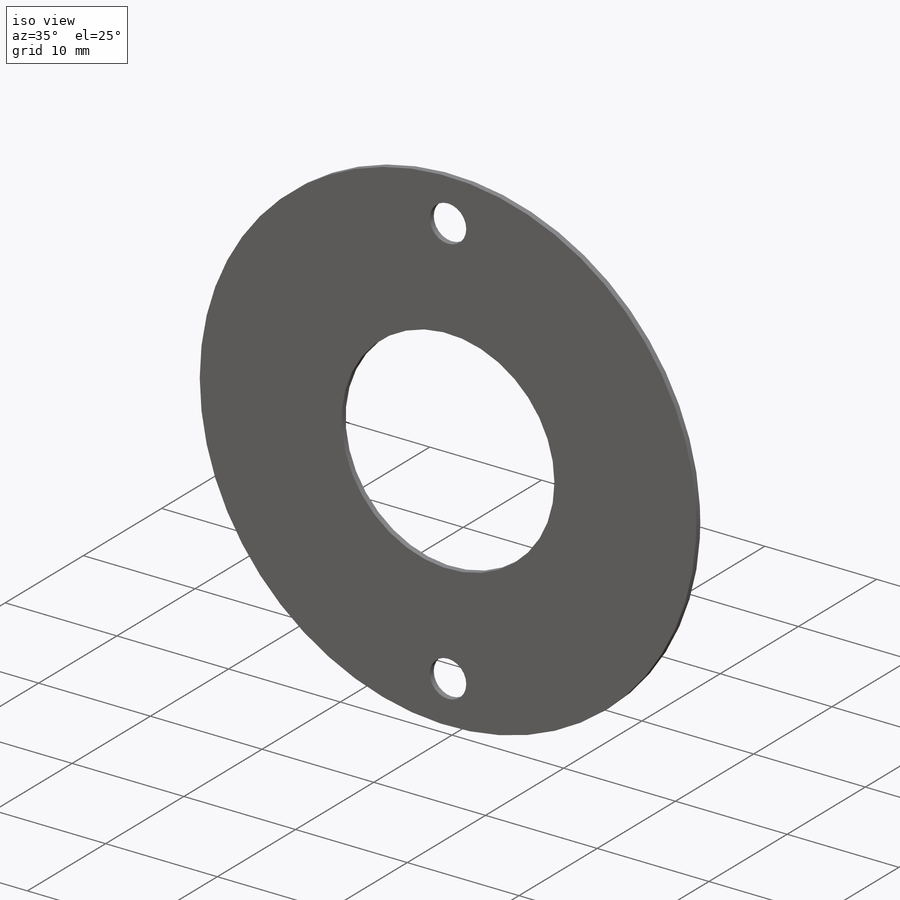
[diagram: iso view]
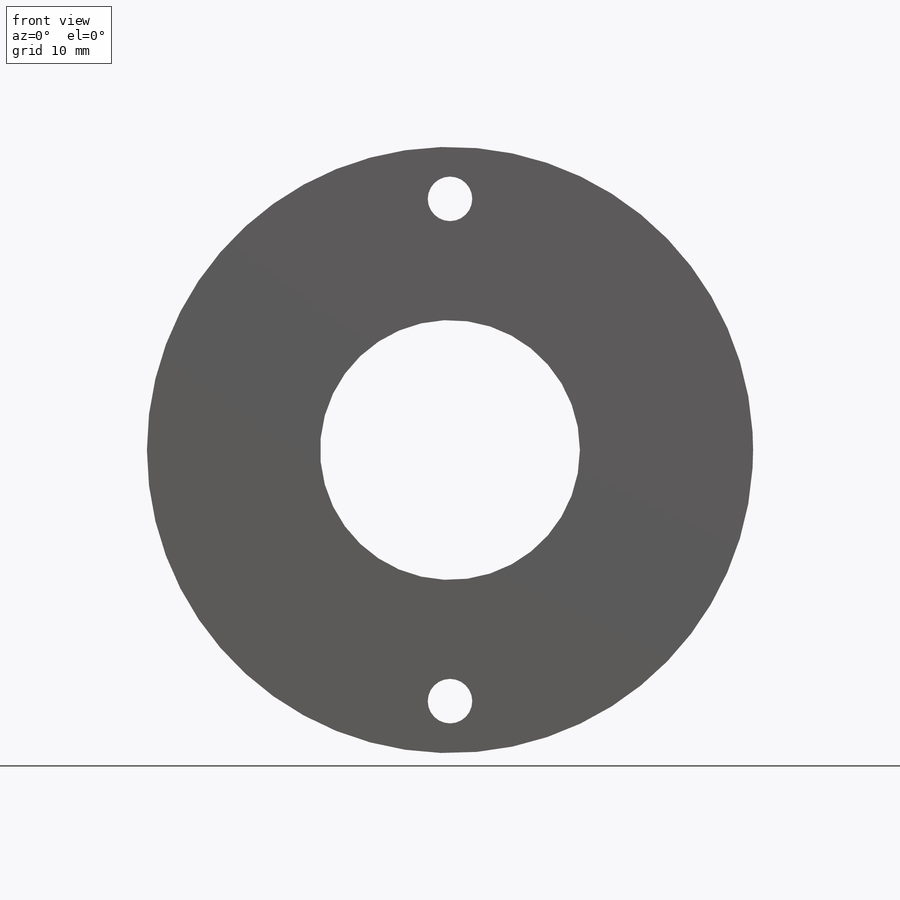
[diagram: front view]
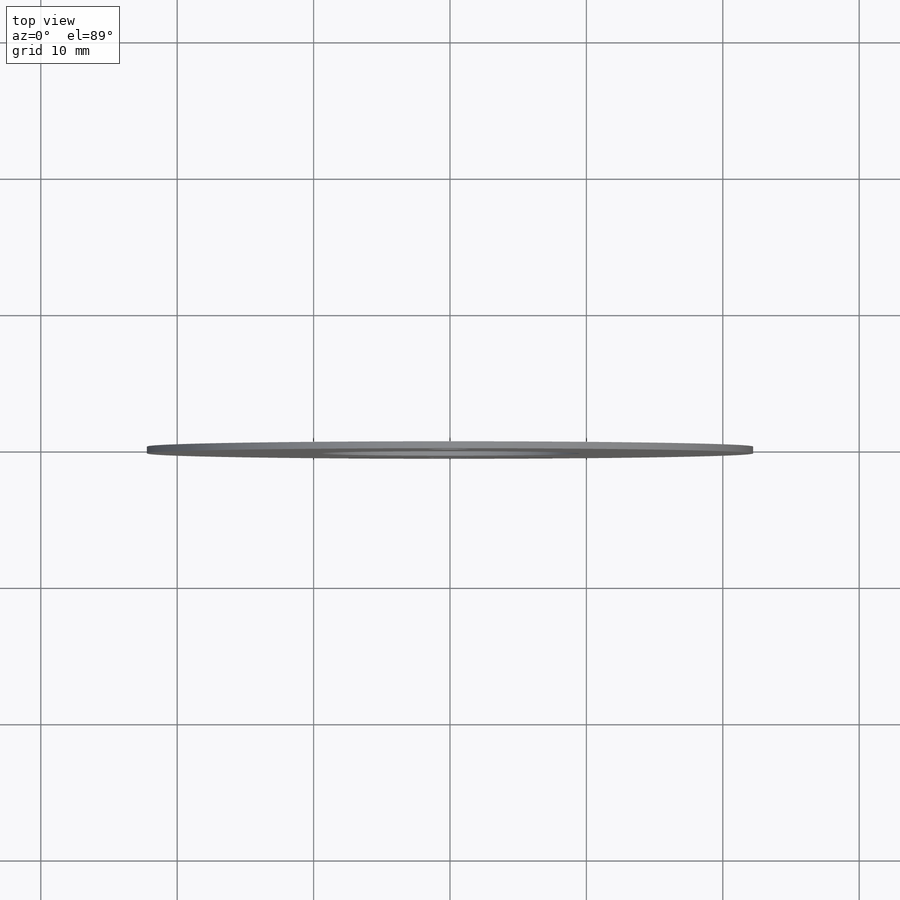
[diagram: top view]
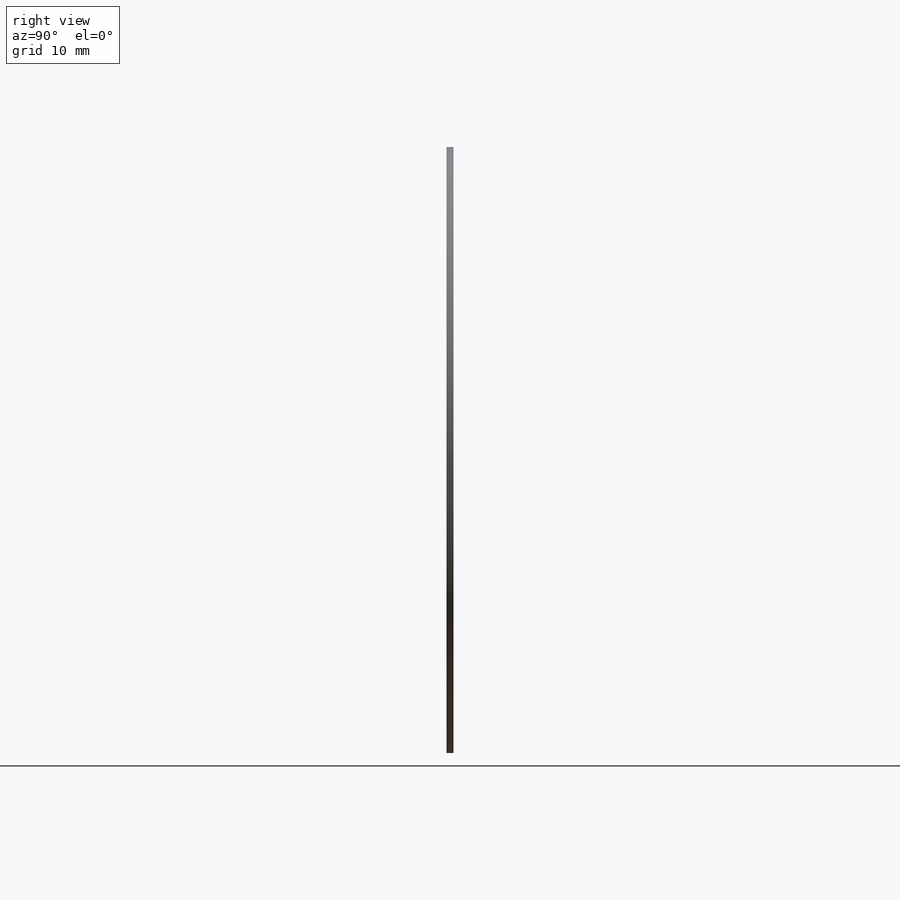
[diagram: right view]
SOLIDWORKS PART (.sldprt)
format: sldprt  version: not decoded by parser v0  size: 150,528 bytes
history: native  units: mm
features: sketch x4, material x1, extrude x1, cut_extrude x1, hole x1, mirror x1 (+13 scaffold rows collapsed)
feature tree (22):
  scaffold x13  (default folders/planes/origin — collapsed)
  material  "Material <not specified>"
  sketch  "Sketch1"  dims[D1=44.45mm]
  extrude  "Boss-Extrude1"  Depth=0.508mm
  sketch  "Sketch2"  dims[D1=19.05mm]
  cut_extrude  "Cut-Extrude1"  [1 undecoded]
  hole  "#30 (0.1285) Diameter Hole1"  Diameter=3.2639mm Depth=0.508mm
  sketch  "Sketch4"  dims[D1=18.415mm]
  sketch  "Sketch5"  dims[hole-wizard template sketch: 60 standard entries collapsed; hole parameters kept: c18.Thru Hole Depth=0.508mm]
  mirror  "Mirror1"
decode coverage: 6 of 8 modeling features carry decoded parameters
note: ~ marks probable driven/reference dimensions
note: 1 parameter value undecoded
note: suppression state not decoded; provenance and decode notes live in map.json
